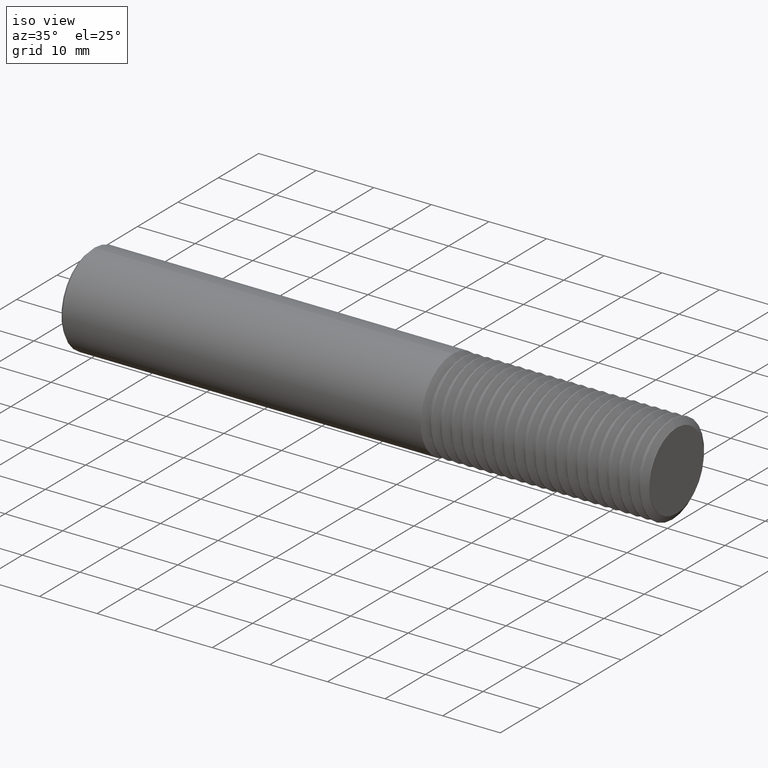
[diagram: clean part render]
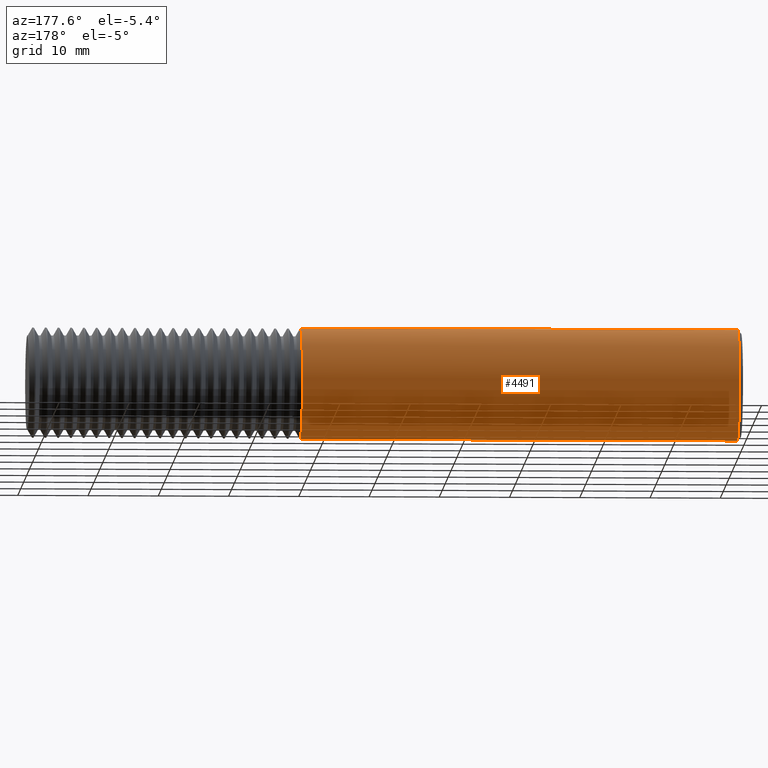
[diagram: tour spotlight — one face highlighted and labeled with its STEP entity id]
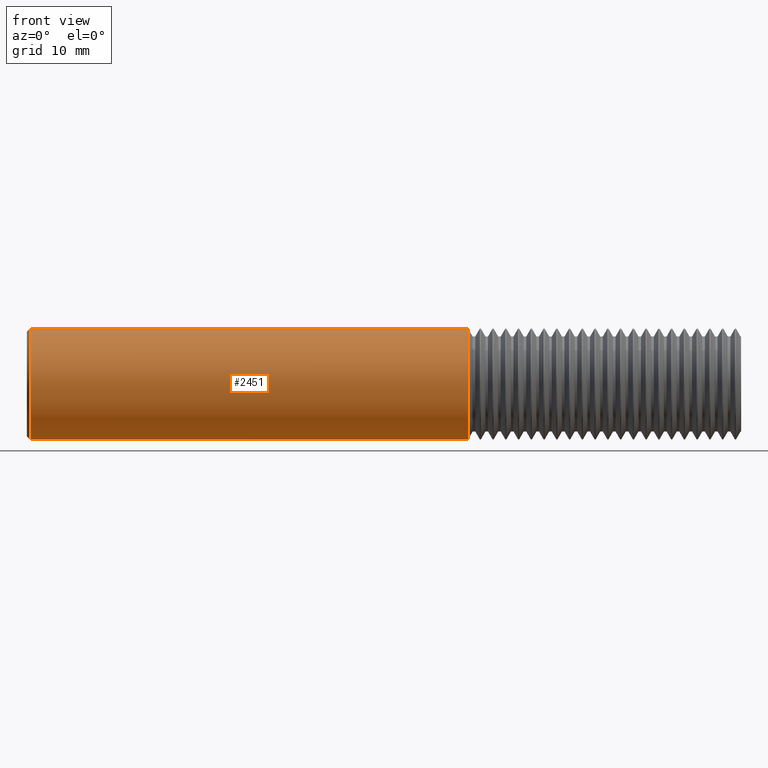
[diagram: tour spotlight — one face highlighted and labeled with its STEP entity id]
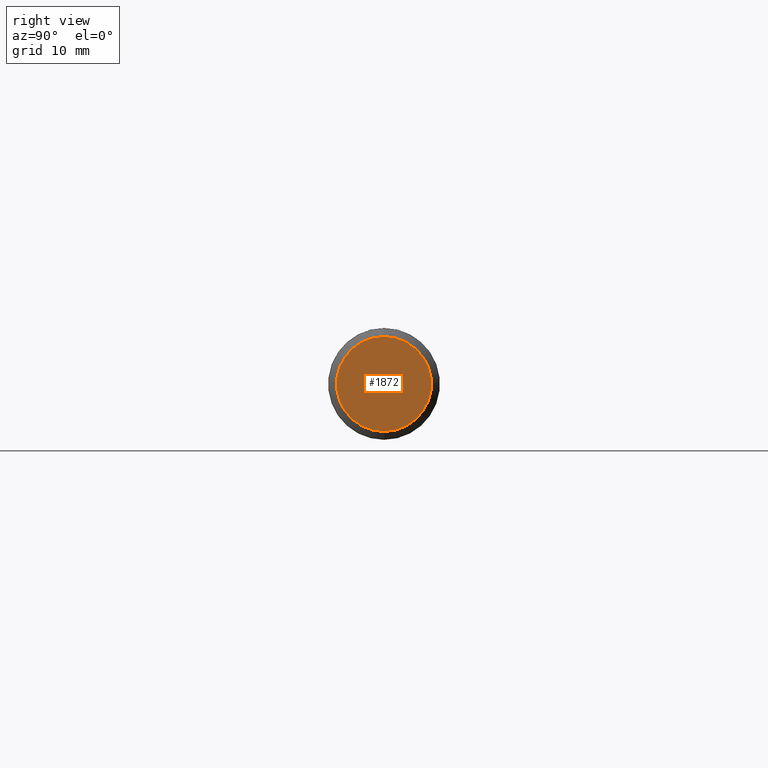
[diagram: tour spotlight — one face highlighted and labeled with its STEP entity id]
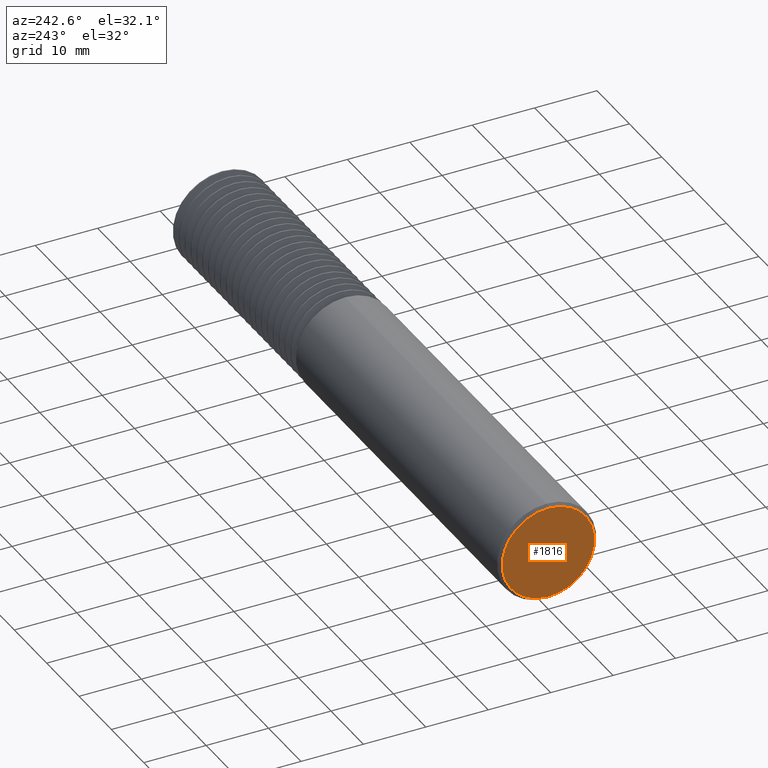
[diagram: tour spotlight — one face highlighted and labeled with its STEP entity id]
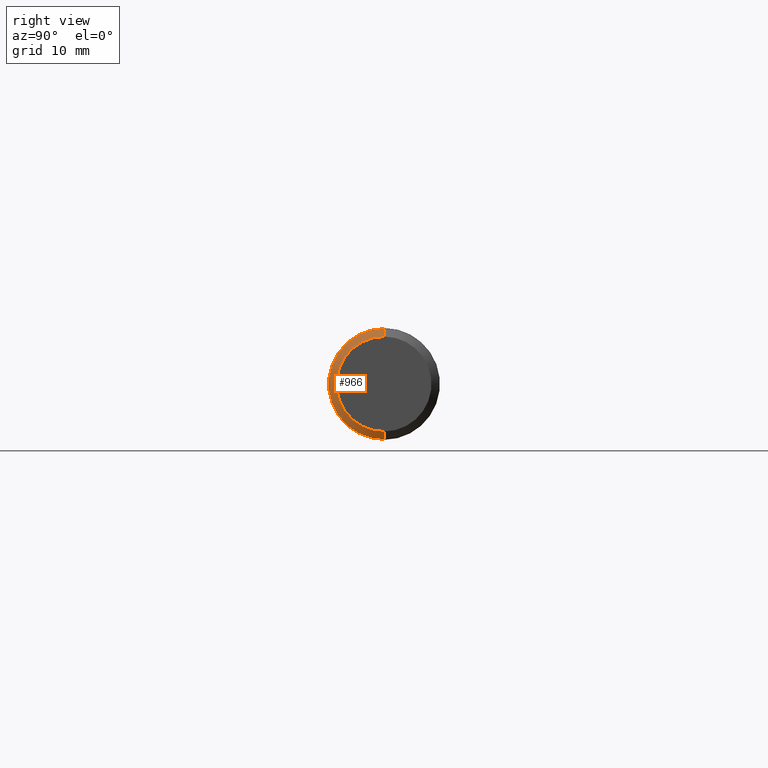
[diagram: tour spotlight — one face highlighted and labeled with its STEP entity id]
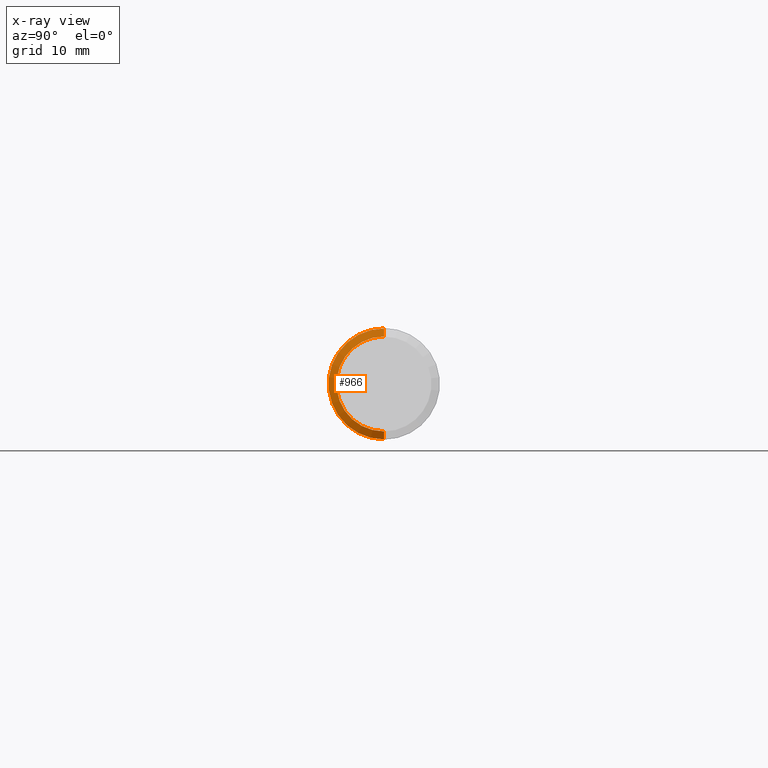
[diagram: x-ray of the same camera — body ghosted, this tour face saturated]
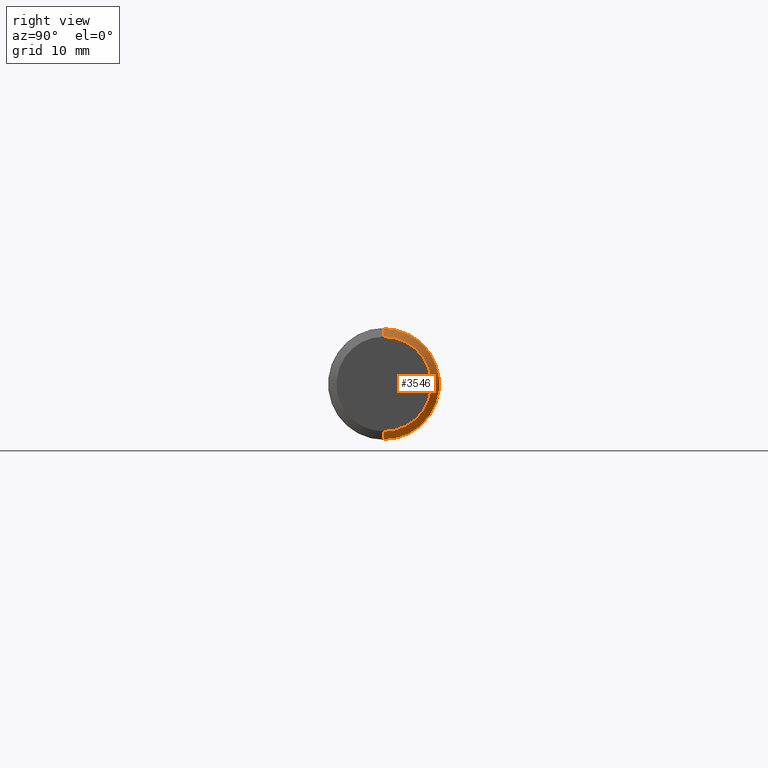
[diagram: tour spotlight — one face highlighted and labeled with its STEP entity id]
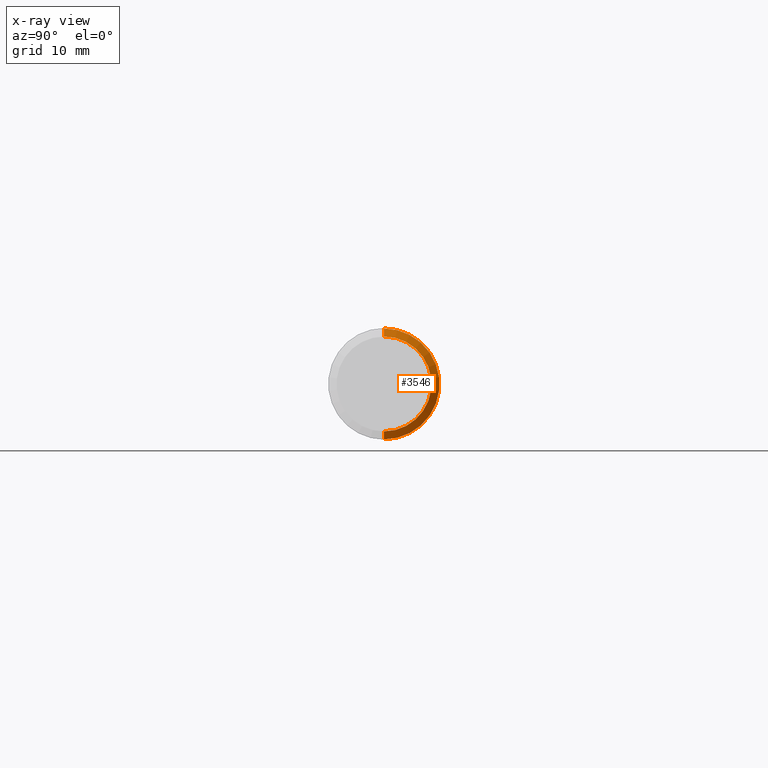
[diagram: x-ray of the same camera — body ghosted, this tour face saturated]
A machine part: a face-by-face anatomy tour. The part has 178 B-rep faces; the first image is the clean iso view, then the 6 largest visible faces are spotlighted one at a time (largest first), each with its STEP entity span.

Face 1 — auxiliary view, entity #4491. In plain terms, the highlighted cylindrical surface (partial cylindrical patch) has radius 7.9337 mm, axis along (1, -0, -0).
Definition (entity closure, byte-faithful):
#157 = ORIENTED_EDGE ( 'NONE', *, *, #4214, .F. ) ;
#229 = CARTESIAN_POINT ( 'NONE',  ( 4.000000000000000000, 3.825184277136757839E-17, 0.3123500000000000165 ) ) ;
#380 = DIRECTION ( 'NONE',  ( -1.000000000000000000, -0.000000000000000000, -0.000000000000000000 ) ) ;
#415 = CARTESIAN_POINT ( 'NONE',  ( 0.02000000000000033348, 3.825184277136757839E-17, 0.3123500000000000165 ) ) ;
#488 = VERTEX_POINT ( 'NONE', #415 ) ;
#579 = CIRCLE ( 'NONE', #1463, 0.3123500000000000165 ) ;
#609 = DIRECTION ( 'NONE',  ( 1.000000000000000000, -0.000000000000000000, -0.000000000000000000 ) ) ;
#737 = LINE ( 'NONE', #1401, #939 ) ;
#761 = DIRECTION ( 'NONE',  ( 0.000000000000000000, 0.000000000000000000, 1.000000000000000000 ) ) ;
#853 = DIRECTION ( 'NONE',  ( 0.000000000000000000, 0.000000000000000000, 1.000000000000000000 ) ) ;
#939 = VECTOR ( 'NONE', #4217, 39.37007874015748143 ) ;
#1154 = CARTESIAN_POINT ( 'NONE',  ( 2.469903617591445499, 0.000000000000000000, 0.3123499999999997390 ) ) ;
#1280 = FACE_OUTER_BOUND ( 'NONE', #4206, .T. ) ;
#1401 = CARTESIAN_POINT ( 'NONE',  ( 4.000000000000000000, 0.000000000000000000, -0.3123500000000000165 ) ) ;
#1463 = AXIS2_PLACEMENT_3D ( 'NONE', #2960, #609, #853 ) ;
#1542 = ORIENTED_EDGE ( 'NONE', *, *, #3159, .T. ) ;
#1572 = DIRECTION ( 'NONE',  ( 1.000000000000000000, -0.000000000000000000, -0.000000000000000000 ) ) ;
#1619 = DIRECTION ( 'NONE',  ( 1.000000000000000000, -0.000000000000000000, -0.000000000000000000 ) ) ;
#1670 = VERTEX_POINT ( 'NONE', #1154 ) ;
#1786 = CARTESIAN_POINT ( 'NONE',  ( 0.02000000000000033348, 0.000000000000000000, -0.3123500000000000165 ) ) ;
#1978 = CYLINDRICAL_SURFACE ( 'NONE', #4521, 0.3123500000000000165 ) ;
#2141 = CARTESIAN_POINT ( 'NONE',  ( 2.469903617591445499, 0.000000000000000000, 0.000000000000000000 ) ) ;
#2960 = CARTESIAN_POINT ( 'NONE',  ( 0.02000000000000033348, 0.000000000000000000, 0.000000000000000000 ) ) ;
#3159 = EDGE_CURVE ( 'NONE', #488, #1670, #3346, .T. ) ;
#3185 = AXIS2_PLACEMENT_3D ( 'NONE', #2141, #380, #761 ) ;
#3285 = VERTEX_POINT ( 'NONE', #1786 ) ;
#3346 = LINE ( 'NONE', #229, #4087 ) ;
#3350 = DIRECTION ( 'NONE',  ( 0.000000000000000000, 0.000000000000000000, -1.000000000000000000 ) ) ;
#3379 = EDGE_CURVE ( 'NONE', #3285, #488, #579, .T. ) ;
#3752 = EDGE_CURVE ( 'NONE', #1670, #4193, #3931, .T. ) ;
#3868 = CARTESIAN_POINT ( 'NONE',  ( 2.469903617591445499, 3.825184277136754141E-17, -0.3123499999999997390 ) ) ;
#3923 = ORIENTED_EDGE ( 'NONE', *, *, #3752, .T. ) ;
#3931 = CIRCLE ( 'NONE', #3185, 0.3123500000000000165 ) ;
#4030 = CARTESIAN_POINT ( 'NONE',  ( 4.000000000000000000, 0.000000000000000000, 0.000000000000000000 ) ) ;
#4087 = VECTOR ( 'NONE', #1619, 39.37007874015748143 ) ;
#4193 = VERTEX_POINT ( 'NONE', #3868 ) ;
#4206 = EDGE_LOOP ( 'NONE', ( #4465, #1542, #3923, #157 ) ) ;
#4214 = EDGE_CURVE ( 'NONE', #3285, #4193, #737, .T. ) ;
#4217 = DIRECTION ( 'NONE',  ( 1.000000000000000000, -0.000000000000000000, -0.000000000000000000 ) ) ;
#4465 = ORIENTED_EDGE ( 'NONE', *, *, #3379, .T. ) ;
#4491 = ADVANCED_FACE ( 'NONE', ( #1280 ), #1978, .T. ) ;
#4521 = AXIS2_PLACEMENT_3D ( 'NONE', #4030, #1572, #3350 ) ;

Face 2 — front view, entity #2451. In plain terms, the highlighted cylindrical surface (partial cylindrical patch) has radius 7.9337 mm, axis along (1, -0, -0).
Definition (entity closure, byte-faithful):
#173 = AXIS2_PLACEMENT_3D ( 'NONE', #572, #4096, #2252 ) ;
#229 = CARTESIAN_POINT ( 'NONE',  ( 4.000000000000000000, 3.825184277136757839E-17, 0.3123500000000000165 ) ) ;
#415 = CARTESIAN_POINT ( 'NONE',  ( 0.02000000000000033348, 3.825184277136757839E-17, 0.3123500000000000165 ) ) ;
#488 = VERTEX_POINT ( 'NONE', #415 ) ;
#572 = CARTESIAN_POINT ( 'NONE',  ( 0.02000000000000033348, 0.000000000000000000, 0.000000000000000000 ) ) ;
#632 = DIRECTION ( 'NONE',  ( -1.000000000000000000, -0.000000000000000000, -0.000000000000000000 ) ) ;
#737 = LINE ( 'NONE', #1401, #939 ) ;
#939 = VECTOR ( 'NONE', #4217, 39.37007874015748143 ) ;
#1126 = DIRECTION ( 'NONE',  ( 0.000000000000000000, 0.000000000000000000, -1.000000000000000000 ) ) ;
#1154 = CARTESIAN_POINT ( 'NONE',  ( 2.469903617591445499, 0.000000000000000000, 0.3123499999999997390 ) ) ;
#1365 = EDGE_LOOP ( 'NONE', ( #2039, #4276, #3294, #1639 ) ) ;
#1401 = CARTESIAN_POINT ( 'NONE',  ( 4.000000000000000000, 0.000000000000000000, -0.3123500000000000165 ) ) ;
#1619 = DIRECTION ( 'NONE',  ( 1.000000000000000000, -0.000000000000000000, -0.000000000000000000 ) ) ;
#1639 = ORIENTED_EDGE ( 'NONE', *, *, #1857, .T. ) ;
#1670 = VERTEX_POINT ( 'NONE', #1154 ) ;
#1739 = DIRECTION ( 'NONE',  ( 0.000000000000000000, 0.000000000000000000, 1.000000000000000000 ) ) ;
#1786 = CARTESIAN_POINT ( 'NONE',  ( 0.02000000000000033348, 0.000000000000000000, -0.3123500000000000165 ) ) ;
#1857 = EDGE_CURVE ( 'NONE', #4193, #1670, #2489, .T. ) ;
#2039 = ORIENTED_EDGE ( 'NONE', *, *, #3159, .F. ) ;
#2096 = CARTESIAN_POINT ( 'NONE',  ( 4.000000000000000000, 0.000000000000000000, 0.000000000000000000 ) ) ;
#2252 = DIRECTION ( 'NONE',  ( 0.000000000000000000, 0.000000000000000000, 1.000000000000000000 ) ) ;
#2437 = DIRECTION ( 'NONE',  ( 1.000000000000000000, -0.000000000000000000, -0.000000000000000000 ) ) ;
#2451 = ADVANCED_FACE ( 'NONE', ( #4283 ), #3190, .T. ) ;
#2489 = CIRCLE ( 'NONE', #3962, 0.3123500000000000165 ) ;
#2846 = AXIS2_PLACEMENT_3D ( 'NONE', #2096, #2437, #1126 ) ;
#3129 = CARTESIAN_POINT ( 'NONE',  ( 2.469903617591445499, 0.000000000000000000, 0.000000000000000000 ) ) ;
#3159 = EDGE_CURVE ( 'NONE', #488, #1670, #3346, .T. ) ;
#3190 = CYLINDRICAL_SURFACE ( 'NONE', #2846, 0.3123500000000000165 ) ;
#3285 = VERTEX_POINT ( 'NONE', #1786 ) ;
#3294 = ORIENTED_EDGE ( 'NONE', *, *, #4214, .T. ) ;
#3346 = LINE ( 'NONE', #229, #4087 ) ;
#3868 = CARTESIAN_POINT ( 'NONE',  ( 2.469903617591445499, 3.825184277136754141E-17, -0.3123499999999997390 ) ) ;
#3962 = AXIS2_PLACEMENT_3D ( 'NONE', #3129, #632, #1739 ) ;
#4087 = VECTOR ( 'NONE', #1619, 39.37007874015748143 ) ;
#4096 = DIRECTION ( 'NONE',  ( 1.000000000000000000, -0.000000000000000000, -0.000000000000000000 ) ) ;
#4192 = CIRCLE ( 'NONE', #173, 0.3123500000000000165 ) ;
#4193 = VERTEX_POINT ( 'NONE', #3868 ) ;
#4214 = EDGE_CURVE ( 'NONE', #3285, #4193, #737, .T. ) ;
#4217 = DIRECTION ( 'NONE',  ( 1.000000000000000000, -0.000000000000000000, -0.000000000000000000 ) ) ;
#4276 = ORIENTED_EDGE ( 'NONE', *, *, #4525, .T. ) ;
#4283 = FACE_OUTER_BOUND ( 'NONE', #1365, .T. ) ;
#4525 = EDGE_CURVE ( 'NONE', #488, #3285, #4192, .T. ) ;

Face 3 — right view, entity #1872. In plain terms, the highlighted planar face has unit normal (1, 0, -0).
Definition (entity closure, byte-faithful):
#260 = DIRECTION ( 'NONE',  ( 0.000000000000000000, 0.000000000000000000, -1.000000000000000000 ) ) ;
#975 = CARTESIAN_POINT ( 'NONE',  ( 4.000000000000000000, 0.3123500000000000165, 0.000000000000000000 ) ) ;
#1006 = CARTESIAN_POINT ( 'NONE',  ( 4.000000000000000000, 3.253776425030344070E-17, -0.2656910079947744641 ) ) ;
#1360 = DIRECTION ( 'NONE',  ( 1.000000000000000000, 0.000000000000000000, -0.000000000000000000 ) ) ;
#1757 = CIRCLE ( 'NONE', #2554, 0.2656910079947744641 ) ;
#1810 = VERTEX_POINT ( 'NONE', #3406 ) ;
#1872 = ADVANCED_FACE ( 'NONE', ( #2077 ), #2421, .T. ) ;
#2026 = CARTESIAN_POINT ( 'NONE',  ( 4.000000000000000000, 0.000000000000000000, 0.000000000000000000 ) ) ;
#2077 = FACE_OUTER_BOUND ( 'NONE', #4133, .T. ) ;
#2378 = EDGE_CURVE ( 'NONE', #4256, #1810, #1757, .T. ) ;
#2421 = PLANE ( 'NONE',  #3595 ) ;
#2554 = AXIS2_PLACEMENT_3D ( 'NONE', #2026, #3399, #3426 ) ;
#3104 = DIRECTION ( 'NONE',  ( -0.000000000000000000, 0.000000000000000000, -1.000000000000000000 ) ) ;
#3378 = CARTESIAN_POINT ( 'NONE',  ( 4.000000000000000000, 0.000000000000000000, 0.000000000000000000 ) ) ;
#3399 = DIRECTION ( 'NONE',  ( 1.000000000000000000, -0.000000000000000000, -0.000000000000000000 ) ) ;
#3406 = CARTESIAN_POINT ( 'NONE',  ( 4.000000000000000000, 0.000000000000000000, 0.2656910079947744641 ) ) ;
#3421 = DIRECTION ( 'NONE',  ( 1.000000000000000000, -0.000000000000000000, -0.000000000000000000 ) ) ;
#3426 = DIRECTION ( 'NONE',  ( 0.000000000000000000, 0.000000000000000000, -1.000000000000000000 ) ) ;
#3595 = AXIS2_PLACEMENT_3D ( 'NONE', #975, #1360, #3104 ) ;
#3989 = EDGE_CURVE ( 'NONE', #1810, #4256, #4081, .T. ) ;
#4081 = CIRCLE ( 'NONE', #4454, 0.2656910079947744641 ) ;
#4086 = ORIENTED_EDGE ( 'NONE', *, *, #3989, .T. ) ;
#4133 = EDGE_LOOP ( 'NONE', ( #4086, #4316 ) ) ;
#4256 = VERTEX_POINT ( 'NONE', #1006 ) ;
#4316 = ORIENTED_EDGE ( 'NONE', *, *, #2378, .T. ) ;
#4454 = AXIS2_PLACEMENT_3D ( 'NONE', #3378, #3421, #260 ) ;

Face 4 — auxiliary view, entity #1816. In plain terms, the highlighted planar face has unit normal (-1, 0, 0).
Definition (entity closure, byte-faithful):
#224 = VERTEX_POINT ( 'NONE', #3983 ) ;
#319 = CARTESIAN_POINT ( 'NONE',  ( 0.000000000000000000, 0.000000000000000000, 0.000000000000000000 ) ) ;
#357 = PLANE ( 'NONE',  #1186 ) ;
#394 = CARTESIAN_POINT ( 'NONE',  ( 0.000000000000000000, 0.000000000000000000, 0.000000000000000000 ) ) ;
#613 = DIRECTION ( 'NONE',  ( 0.000000000000000000, 0.000000000000000000, 1.000000000000000000 ) ) ;
#680 = CARTESIAN_POINT ( 'NONE',  ( 0.000000000000000000, 0.000000000000000000, 0.000000000000000000 ) ) ;
#1018 = DIRECTION ( 'NONE',  ( 0.000000000000000000, 0.000000000000000000, 1.000000000000000000 ) ) ;
#1186 = AXIS2_PLACEMENT_3D ( 'NONE', #680, #3835, #613 ) ;
#1390 = VERTEX_POINT ( 'NONE', #2038 ) ;
#1439 = EDGE_CURVE ( 'NONE', #224, #1390, #4032, .T. ) ;
#1668 = CIRCLE ( 'NONE', #2315, 0.2923499999999999432 ) ;
#1699 = DIRECTION ( 'NONE',  ( -1.000000000000000000, 0.000000000000000000, 0.000000000000000000 ) ) ;
#1744 = DIRECTION ( 'NONE',  ( -1.000000000000000000, 0.000000000000000000, 0.000000000000000000 ) ) ;
#1816 = ADVANCED_FACE ( 'NONE', ( #4153 ), #357, .T. ) ;
#1849 = EDGE_LOOP ( 'NONE', ( #2540, #2562 ) ) ;
#2038 = CARTESIAN_POINT ( 'NONE',  ( 0.000000000000000000, 0.000000000000000000, -0.2923499999999999432 ) ) ;
#2042 = AXIS2_PLACEMENT_3D ( 'NONE', #394, #1744, #3136 ) ;
#2315 = AXIS2_PLACEMENT_3D ( 'NONE', #319, #1699, #1018 ) ;
#2540 = ORIENTED_EDGE ( 'NONE', *, *, #3213, .T. ) ;
#2562 = ORIENTED_EDGE ( 'NONE', *, *, #1439, .T. ) ;
#3136 = DIRECTION ( 'NONE',  ( 0.000000000000000000, 0.000000000000000000, 1.000000000000000000 ) ) ;
#3213 = EDGE_CURVE ( 'NONE', #1390, #224, #1668, .T. ) ;
#3835 = DIRECTION ( 'NONE',  ( -1.000000000000000000, 0.000000000000000000, 0.000000000000000000 ) ) ;
#3983 = CARTESIAN_POINT ( 'NONE',  ( 0.000000000000000000, 3.702719597222022173E-17, 0.2923499999999999432 ) ) ;
#4032 = CIRCLE ( 'NONE', #2042, 0.2923499999999999432 ) ;
#4153 = FACE_OUTER_BOUND ( 'NONE', #1849, .T. ) ;

Face 5 — right view, entity #966. An x-ray twin of the same camera follows (body ghosted, this face saturated) — the face is partly hidden behind the body. In plain terms, the highlighted conical surface has half-angle 60.25 deg.
Definition (entity closure, byte-faithful):
#316 = CONICAL_SURFACE ( 'NONE', #4402, 0.3299999999999999600, 1.051560874326591177 ) ;
#395 = ORIENTED_EDGE ( 'NONE', *, *, #2081, .F. ) ;
#446 = DIRECTION ( 'NONE',  ( -1.000000000000000000, -0.000000000000000000, -0.000000000000000000 ) ) ;
#583 = EDGE_CURVE ( 'NONE', #1206, #2653, #1957, .T. ) ;
#700 = CARTESIAN_POINT ( 'NONE',  ( 3.959815811499449278, 4.041334437186264647E-17, -0.3299999999999999600 ) ) ;
#721 = CARTESIAN_POINT ( 'NONE',  ( 3.971246753246753247, 3.796405077356794548E-17, -0.3099999999999999978 ) ) ;
#936 = VECTOR ( 'NONE', #2823, 39.37007874015748143 ) ;
#966 = ADVANCED_FACE ( 'NONE', ( #4129 ), #316, .T. ) ;
#1195 = CARTESIAN_POINT ( 'NONE',  ( 3.996571428571428442, 0.000000000000000000, 0.2656910079947744641 ) ) ;
#1206 = VERTEX_POINT ( 'NONE', #1523 ) ;
#1350 = CARTESIAN_POINT ( 'NONE',  ( 3.971246753246753247, 0.000000000000000000, 0.3099999999999999978 ) ) ;
#1523 = CARTESIAN_POINT ( 'NONE',  ( 3.996571428571428442, 3.253776425030344070E-17, -0.2656910079947744641 ) ) ;
#1664 = LINE ( 'NONE', #1777, #936 ) ;
#1710 = CARTESIAN_POINT ( 'NONE',  ( 3.959815811499449278, 0.000000000000000000, 0.000000000000000000 ) ) ;
#1777 = CARTESIAN_POINT ( 'NONE',  ( 3.959815811499449278, 0.000000000000000000, 0.3299999999999999600 ) ) ;
#1957 = CIRCLE ( 'NONE', #3272, 0.2656910079947744641 ) ;
#1975 = VERTEX_POINT ( 'NONE', #721 ) ;
#1982 = DIRECTION ( 'NONE',  ( -1.000000000000000000, -0.000000000000000000, -0.000000000000000000 ) ) ;
#2081 = EDGE_CURVE ( 'NONE', #1975, #2813, #3820, .T. ) ;
#2123 = AXIS2_PLACEMENT_3D ( 'NONE', #2833, #446, #3943 ) ;
#2420 = DIRECTION ( 'NONE',  ( 0.000000000000000000, 0.000000000000000000, 1.000000000000000000 ) ) ;
#2545 = LINE ( 'NONE', #700, #2679 ) ;
#2566 = ORIENTED_EDGE ( 'NONE', *, *, #4025, .T. ) ;
#2653 = VERTEX_POINT ( 'NONE', #1195 ) ;
#2679 = VECTOR ( 'NONE', #3836, 39.37007874015748143 ) ;
#2719 = CARTESIAN_POINT ( 'NONE',  ( 3.996571428571428442, 0.000000000000000000, 0.000000000000000000 ) ) ;
#2813 = VERTEX_POINT ( 'NONE', #1350 ) ;
#2823 = DIRECTION ( 'NONE',  ( -0.4962165036752015368, 0.000000000000000000, 0.8681988144891460424 ) ) ;
#2833 = CARTESIAN_POINT ( 'NONE',  ( 3.971246753246753247, 0.000000000000000000, 0.000000000000000000 ) ) ;
#3088 = EDGE_CURVE ( 'NONE', #1206, #1975, #2545, .T. ) ;
#3272 = AXIS2_PLACEMENT_3D ( 'NONE', #2719, #4134, #2420 ) ;
#3773 = DIRECTION ( 'NONE',  ( 0.000000000000000000, 0.000000000000000000, 1.000000000000000000 ) ) ;
#3820 = CIRCLE ( 'NONE', #2123, 0.3099999999999999978 ) ;
#3836 = DIRECTION ( 'NONE',  ( -0.4962165036752015368, 1.063236899187659230E-16, -0.8681988144891460424 ) ) ;
#3943 = DIRECTION ( 'NONE',  ( 0.000000000000000000, 0.000000000000000000, 1.000000000000000000 ) ) ;
#4025 = EDGE_CURVE ( 'NONE', #2653, #2813, #1664, .T. ) ;
#4129 = FACE_OUTER_BOUND ( 'NONE', #4417, .T. ) ;
#4134 = DIRECTION ( 'NONE',  ( -1.000000000000000000, -0.000000000000000000, -0.000000000000000000 ) ) ;
#4393 = ORIENTED_EDGE ( 'NONE', *, *, #583, .T. ) ;
#4398 = ORIENTED_EDGE ( 'NONE', *, *, #3088, .F. ) ;
#4402 = AXIS2_PLACEMENT_3D ( 'NONE', #1710, #1982, #3773 ) ;
#4417 = EDGE_LOOP ( 'NONE', ( #4398, #4393, #2566, #395 ) ) ;

Face 6 — right view, entity #3546. An x-ray twin of the same camera follows (body ghosted, this face saturated) — the face is partly hidden behind the body. In plain terms, the highlighted conical surface has half-angle 60.25 deg.
Definition (entity closure, byte-faithful):
#116 = DIRECTION ( 'NONE',  ( 0.000000000000000000, 0.000000000000000000, 1.000000000000000000 ) ) ;
#313 = AXIS2_PLACEMENT_3D ( 'NONE', #4321, #836, #116 ) ;
#454 = ORIENTED_EDGE ( 'NONE', *, *, #4025, .F. ) ;
#495 = DIRECTION ( 'NONE',  ( 0.000000000000000000, 0.000000000000000000, 1.000000000000000000 ) ) ;
#700 = CARTESIAN_POINT ( 'NONE',  ( 3.959815811499449278, 4.041334437186264647E-17, -0.3299999999999999600 ) ) ;
#721 = CARTESIAN_POINT ( 'NONE',  ( 3.971246753246753247, 3.796405077356794548E-17, -0.3099999999999999978 ) ) ;
#836 = DIRECTION ( 'NONE',  ( -1.000000000000000000, -0.000000000000000000, -0.000000000000000000 ) ) ;
#856 = CARTESIAN_POINT ( 'NONE',  ( 3.996571428571428442, 0.000000000000000000, 0.000000000000000000 ) ) ;
#936 = VECTOR ( 'NONE', #2823, 39.37007874015748143 ) ;
#1195 = CARTESIAN_POINT ( 'NONE',  ( 3.996571428571428442, 0.000000000000000000, 0.2656910079947744641 ) ) ;
#1206 = VERTEX_POINT ( 'NONE', #1523 ) ;
#1291 = DIRECTION ( 'NONE',  ( -1.000000000000000000, -0.000000000000000000, -0.000000000000000000 ) ) ;
#1350 = CARTESIAN_POINT ( 'NONE',  ( 3.971246753246753247, 0.000000000000000000, 0.3099999999999999978 ) ) ;
#1437 = EDGE_LOOP ( 'NONE', ( #1838, #4122, #3842, #454 ) ) ;
#1523 = CARTESIAN_POINT ( 'NONE',  ( 3.996571428571428442, 3.253776425030344070E-17, -0.2656910079947744641 ) ) ;
#1540 = EDGE_CURVE ( 'NONE', #2813, #1975, #2482, .T. ) ;
#1543 = CIRCLE ( 'NONE', #2776, 0.2656910079947744641 ) ;
#1664 = LINE ( 'NONE', #1777, #936 ) ;
#1764 = EDGE_CURVE ( 'NONE', #2653, #1206, #1543, .T. ) ;
#1777 = CARTESIAN_POINT ( 'NONE',  ( 3.959815811499449278, 0.000000000000000000, 0.3299999999999999600 ) ) ;
#1838 = ORIENTED_EDGE ( 'NONE', *, *, #1764, .T. ) ;
#1975 = VERTEX_POINT ( 'NONE', #721 ) ;
#2003 = FACE_OUTER_BOUND ( 'NONE', #1437, .T. ) ;
#2367 = DIRECTION ( 'NONE',  ( -1.000000000000000000, -0.000000000000000000, -0.000000000000000000 ) ) ;
#2388 = AXIS2_PLACEMENT_3D ( 'NONE', #3852, #2367, #2418 ) ;
#2418 = DIRECTION ( 'NONE',  ( 0.000000000000000000, 0.000000000000000000, 1.000000000000000000 ) ) ;
#2482 = CIRCLE ( 'NONE', #313, 0.3099999999999999978 ) ;
#2545 = LINE ( 'NONE', #700, #2679 ) ;
#2653 = VERTEX_POINT ( 'NONE', #1195 ) ;
#2679 = VECTOR ( 'NONE', #3836, 39.37007874015748143 ) ;
#2776 = AXIS2_PLACEMENT_3D ( 'NONE', #856, #1291, #495 ) ;
#2813 = VERTEX_POINT ( 'NONE', #1350 ) ;
#2823 = DIRECTION ( 'NONE',  ( -0.4962165036752015368, 0.000000000000000000, 0.8681988144891460424 ) ) ;
#3088 = EDGE_CURVE ( 'NONE', #1206, #1975, #2545, .T. ) ;
#3546 = ADVANCED_FACE ( 'NONE', ( #2003 ), #4242, .T. ) ;
#3836 = DIRECTION ( 'NONE',  ( -0.4962165036752015368, 1.063236899187659230E-16, -0.8681988144891460424 ) ) ;
#3842 = ORIENTED_EDGE ( 'NONE', *, *, #1540, .F. ) ;
#3852 = CARTESIAN_POINT ( 'NONE',  ( 3.959815811499449278, 0.000000000000000000, 0.000000000000000000 ) ) ;
#4025 = EDGE_CURVE ( 'NONE', #2653, #2813, #1664, .T. ) ;
#4122 = ORIENTED_EDGE ( 'NONE', *, *, #3088, .T. ) ;
#4242 = CONICAL_SURFACE ( 'NONE', #2388, 0.3299999999999999600, 1.051560874326591177 ) ;
#4321 = CARTESIAN_POINT ( 'NONE',  ( 3.971246753246753247, 0.000000000000000000, 0.000000000000000000 ) ) ;